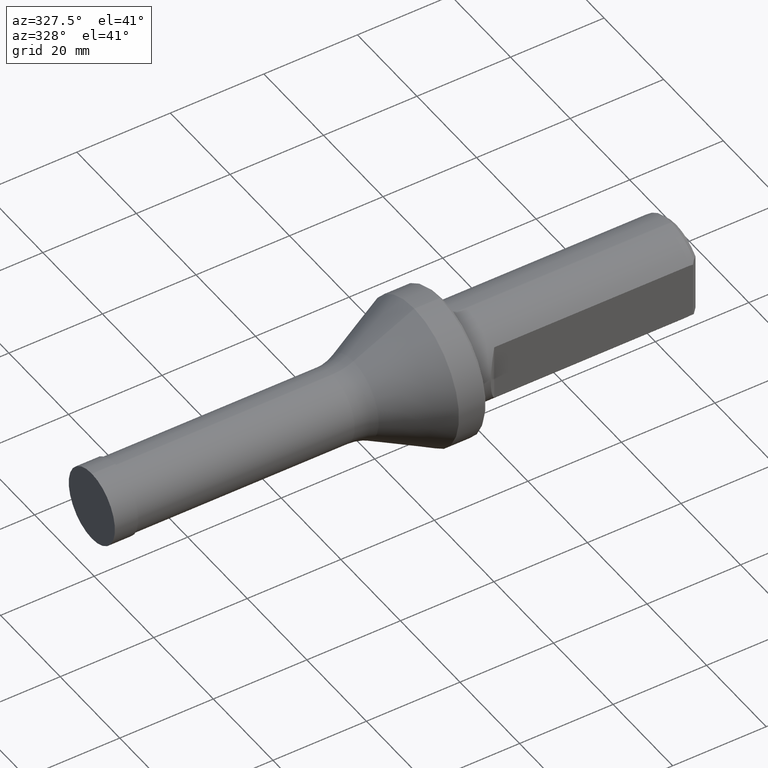
[diagram: clean part render]
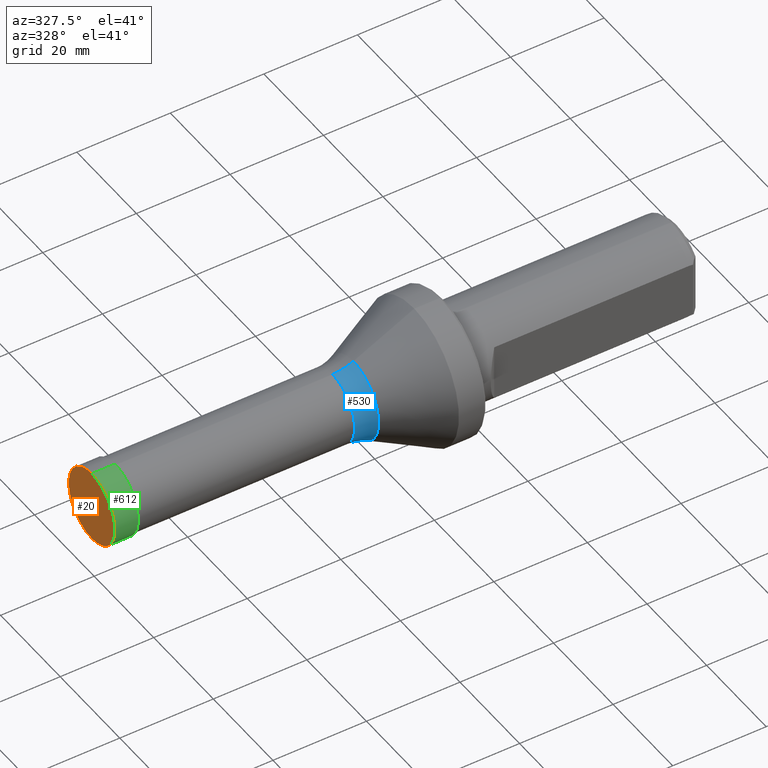
[diagram: same view with three faces highlighted in distinct colors, each labeled with its STEP entity id]
A machine part, auxiliary view with three faces highlighted in distinct colors.
Their STEP definitions:

[orange] entity #20 — the highlighted planar face has unit normal (1, 0, 0).
#20 = ADVANCED_FACE ( 'NONE', ( #826 ), #1227, .F. ) ;
#40 = EDGE_CURVE ( 'NONE', #861, #819, #638, .T. ) ;
#113 = CIRCLE ( 'NONE', #583, 7.750000000000000000 ) ;
#180 = DIRECTION ( 'NONE',  ( 0.0000000000000000000, 0.0000000000000000000, -1.000000000000000000 ) ) ;
#200 = EDGE_LOOP ( 'NONE', ( #685, #458 ) ) ;
#290 = CARTESIAN_POINT ( 'NONE',  ( -0.5000000000000001100, 0.0000000000000000000, 0.0000000000000000000 ) ) ;
#376 = DIRECTION ( 'NONE',  ( 0.0000000000000000000, 0.0000000000000000000, 1.000000000000000000 ) ) ;
#457 = CARTESIAN_POINT ( 'NONE',  ( -0.5000000000000001100, 1.735000000000000100, 0.0000000000000000000 ) ) ;
#458 = ORIENTED_EDGE ( 'NONE', *, *, #40, .T. ) ;
#459 = CARTESIAN_POINT ( 'NONE',  ( -0.5000000000000001100, 0.0000000000000000000, 0.0000000000000000000 ) ) ;
#528 = AXIS2_PLACEMENT_3D ( 'NONE', #457, #648, #180 ) ;
#552 = DIRECTION ( 'NONE',  ( -1.000000000000000000, 0.0000000000000000000, 0.0000000000000000000 ) ) ;
#583 = AXIS2_PLACEMENT_3D ( 'NONE', #459, #552, #1133 ) ;
#638 = CIRCLE ( 'NONE', #787, 7.750000000000000000 ) ;
#648 = DIRECTION ( 'NONE',  ( 1.000000000000000000, 0.0000000000000000000, 0.0000000000000000000 ) ) ;
#685 = ORIENTED_EDGE ( 'NONE', *, *, #937, .T. ) ;
#760 = CARTESIAN_POINT ( 'NONE',  ( -0.5000000000000001100, 9.491012693391987800E-016, -7.750000000000000000 ) ) ;
#787 = AXIS2_PLACEMENT_3D ( 'NONE', #290, #941, #376 ) ;
#819 = VERTEX_POINT ( 'NONE', #1152 ) ;
#826 = FACE_OUTER_BOUND ( 'NONE', #200, .T. ) ;
#861 = VERTEX_POINT ( 'NONE', #760 ) ;
#937 = EDGE_CURVE ( 'NONE', #819, #861, #113, .T. ) ;
#941 = DIRECTION ( 'NONE',  ( -1.000000000000000000, 0.0000000000000000000, 0.0000000000000000000 ) ) ;
#1133 = DIRECTION ( 'NONE',  ( 0.0000000000000000000, 0.0000000000000000000, 1.000000000000000000 ) ) ;
#1152 = CARTESIAN_POINT ( 'NONE',  ( -0.5000000000000001100, 0.0000000000000000000, 7.750000000000000000 ) ) ;
#1227 = PLANE ( 'NONE',  #528 ) ;

[blue] entity #530 — the highlighted toroidal blend (fillet) surface has major radius 17.45 mm and minor (blend) radius 10 mm.
#26 = VERTEX_POINT ( 'NONE', #283 ) ;
#47 = VERTEX_POINT ( 'NONE', #472 ) ;
#69 = CARTESIAN_POINT ( 'NONE',  ( 50.96900000000000100, 0.0000000000000000000, 0.0000000000000000000 ) ) ;
#162 = DIRECTION ( 'NONE',  ( 0.0000000000000000000, 0.0000000000000000000, 1.000000000000000000 ) ) ;
#216 = CIRCLE ( 'NONE', #997, 10.00000000000000700 ) ;
#283 = CARTESIAN_POINT ( 'NONE',  ( 50.96900000000000100, 0.0000000000000000000, 7.450000000000000200 ) ) ;
#292 = ORIENTED_EDGE ( 'NONE', *, *, #646, .T. ) ;
#313 = DIRECTION ( 'NONE',  ( 0.0000000000000000000, -1.224646799147353500E-016, 1.000000000000000000 ) ) ;
#332 = DIRECTION ( 'NONE',  ( 0.0000000000000000000, -1.000000000000000000, 0.0000000000000000000 ) ) ;
#344 = AXIS2_PLACEMENT_3D ( 'NONE', #869, #970, #313 ) ;
#360 = AXIS2_PLACEMENT_3D ( 'NONE', #69, #721, #162 ) ;
#361 = TOROIDAL_SURFACE ( 'NONE', #543, 17.44999999999999900, 10.00000000000000700 ) ;
#398 = CARTESIAN_POINT ( 'NONE',  ( 50.96900000000000100, 9.123618653647781200E-016, -7.450000000000000200 ) ) ;
#418 = CARTESIAN_POINT ( 'NONE',  ( 50.96900000000000100, 0.0000000000000000000, 17.44999999999999900 ) ) ;
#419 = AXIS2_PLACEMENT_3D ( 'NONE', #588, #1161, #492 ) ;
#420 = ORIENTED_EDGE ( 'NONE', *, *, #669, .T. ) ;
#472 = CARTESIAN_POINT ( 'NONE',  ( 55.43554605212926100, 0.0000000000000000000, 8.502935321335346700 ) ) ;
#492 = DIRECTION ( 'NONE',  ( 0.0000000000000000000, 0.0000000000000000000, 1.000000000000000000 ) ) ;
#493 = EDGE_CURVE ( 'NONE', #1136, #26, #1068, .T. ) ;
#530 = ADVANCED_FACE ( 'NONE', ( #889 ), #361, .F. ) ;
#543 = AXIS2_PLACEMENT_3D ( 'NONE', #695, #789, #598 ) ;
#588 = CARTESIAN_POINT ( 'NONE',  ( 55.43554605212926100, 0.0000000000000000000, 0.0000000000000000000 ) ) ;
#598 = DIRECTION ( 'NONE',  ( 0.0000000000000000000, 0.0000000000000000000, 1.000000000000000000 ) ) ;
#602 = EDGE_CURVE ( 'NONE', #26, #47, #216, .T. ) ;
#614 = ORIENTED_EDGE ( 'NONE', *, *, #493, .F. ) ;
#636 = CIRCLE ( 'NONE', #344, 10.00000000000000700 ) ;
#646 = EDGE_CURVE ( 'NONE', #1136, #1180, #636, .T. ) ;
#669 = EDGE_CURVE ( 'NONE', #1180, #47, #951, .T. ) ;
#695 = CARTESIAN_POINT ( 'NONE',  ( 50.96900000000000100, 0.0000000000000000000, 0.0000000000000000000 ) ) ;
#721 = DIRECTION ( 'NONE',  ( -1.000000000000000000, -0.0000000000000000000, -0.0000000000000000000 ) ) ;
#789 = DIRECTION ( 'NONE',  ( -1.000000000000000000, -0.0000000000000000000, -0.0000000000000000000 ) ) ;
#869 = CARTESIAN_POINT ( 'NONE',  ( 50.96900000000000100, 2.137008664512131600E-015, -17.44999999999999900 ) ) ;
#881 = DIRECTION ( 'NONE',  ( 0.0000000000000000000, 0.0000000000000000000, -1.000000000000000000 ) ) ;
#889 = FACE_OUTER_BOUND ( 'NONE', #1110, .T. ) ;
#951 = CIRCLE ( 'NONE', #419, 8.502935321335348500 ) ;
#970 = DIRECTION ( 'NONE',  ( -0.0000000000000000000, 1.000000000000000000, 1.224646799147353200E-016 ) ) ;
#997 = AXIS2_PLACEMENT_3D ( 'NONE', #418, #332, #881 ) ;
#1053 = CARTESIAN_POINT ( 'NONE',  ( 55.43554605212926100, 1.041309252463030300E-015, -8.502935321335346700 ) ) ;
#1068 = CIRCLE ( 'NONE', #360, 7.450000000000000200 ) ;
#1110 = EDGE_LOOP ( 'NONE', ( #614, #292, #420, #1230 ) ) ;
#1136 = VERTEX_POINT ( 'NONE', #398 ) ;
#1161 = DIRECTION ( 'NONE',  ( -1.000000000000000000, -0.0000000000000000000, -0.0000000000000000000 ) ) ;
#1180 = VERTEX_POINT ( 'NONE', #1053 ) ;
#1230 = ORIENTED_EDGE ( 'NONE', *, *, #602, .F. ) ;

[green] entity #612 — the highlighted cylindrical surface (partial cylindrical patch) has radius 7.75 mm, axis along (-1, 0, 0).
#32 = EDGE_CURVE ( 'NONE', #1215, #461, #312, .T. ) ;
#40 = EDGE_CURVE ( 'NONE', #861, #819, #638, .T. ) ;
#64 = CARTESIAN_POINT ( 'NONE',  ( 4.500000000000000000, 0.0000000000000000000, 7.750000000000000000 ) ) ;
#124 = ORIENTED_EDGE ( 'NONE', *, *, #32, .T. ) ;
#140 = VECTOR ( 'NONE', #429, 1000.000000000000000 ) ;
#290 = CARTESIAN_POINT ( 'NONE',  ( -0.5000000000000001100, 0.0000000000000000000, 0.0000000000000000000 ) ) ;
#312 = CIRCLE ( 'NONE', #597, 7.750000000000000000 ) ;
#376 = DIRECTION ( 'NONE',  ( 0.0000000000000000000, 0.0000000000000000000, 1.000000000000000000 ) ) ;
#422 = LINE ( 'NONE', #828, #545 ) ;
#429 = DIRECTION ( 'NONE',  ( -1.000000000000000000, 0.0000000000000000000, 0.0000000000000000000 ) ) ;
#430 = EDGE_CURVE ( 'NONE', #461, #819, #751, .T. ) ;
#461 = VERTEX_POINT ( 'NONE', #811 ) ;
#468 = CARTESIAN_POINT ( 'NONE',  ( 4.500000000000000000, 0.0000000000000000000, 0.0000000000000000000 ) ) ;
#535 = CYLINDRICAL_SURFACE ( 'NONE', #1194, 7.750000000000000000 ) ;
#545 = VECTOR ( 'NONE', #736, 1000.000000000000000 ) ;
#557 = DIRECTION ( 'NONE',  ( 0.0000000000000000000, 0.0000000000000000000, 1.000000000000000000 ) ) ;
#597 = AXIS2_PLACEMENT_3D ( 'NONE', #468, #1138, #557 ) ;
#612 = ADVANCED_FACE ( 'NONE', ( #720 ), #535, .T. ) ;
#638 = CIRCLE ( 'NONE', #787, 7.750000000000000000 ) ;
#655 = ORIENTED_EDGE ( 'NONE', *, *, #1002, .F. ) ;
#720 = FACE_OUTER_BOUND ( 'NONE', #996, .T. ) ;
#736 = DIRECTION ( 'NONE',  ( -1.000000000000000000, 0.0000000000000000000, 0.0000000000000000000 ) ) ;
#751 = LINE ( 'NONE', #64, #140 ) ;
#760 = CARTESIAN_POINT ( 'NONE',  ( -0.5000000000000001100, 9.491012693391987800E-016, -7.750000000000000000 ) ) ;
#787 = AXIS2_PLACEMENT_3D ( 'NONE', #290, #941, #376 ) ;
#795 = ORIENTED_EDGE ( 'NONE', *, *, #40, .F. ) ;
#797 = CARTESIAN_POINT ( 'NONE',  ( 4.500000000000000000, 0.0000000000000000000, 0.0000000000000000000 ) ) ;
#811 = CARTESIAN_POINT ( 'NONE',  ( 4.500000000000000000, 0.0000000000000000000, 7.750000000000000000 ) ) ;
#819 = VERTEX_POINT ( 'NONE', #1152 ) ;
#828 = CARTESIAN_POINT ( 'NONE',  ( 4.500000000000000000, 9.491012693391987800E-016, -7.750000000000000000 ) ) ;
#861 = VERTEX_POINT ( 'NONE', #760 ) ;
#895 = DIRECTION ( 'NONE',  ( 0.0000000000000000000, 0.0000000000000000000, 1.000000000000000000 ) ) ;
#936 = ORIENTED_EDGE ( 'NONE', *, *, #430, .T. ) ;
#941 = DIRECTION ( 'NONE',  ( -1.000000000000000000, 0.0000000000000000000, 0.0000000000000000000 ) ) ;
#985 = DIRECTION ( 'NONE',  ( -1.000000000000000000, 0.0000000000000000000, 0.0000000000000000000 ) ) ;
#996 = EDGE_LOOP ( 'NONE', ( #655, #124, #936, #795 ) ) ;
#1002 = EDGE_CURVE ( 'NONE', #1215, #861, #422, .T. ) ;
#1138 = DIRECTION ( 'NONE',  ( -1.000000000000000000, 0.0000000000000000000, 0.0000000000000000000 ) ) ;
#1152 = CARTESIAN_POINT ( 'NONE',  ( -0.5000000000000001100, 0.0000000000000000000, 7.750000000000000000 ) ) ;
#1158 = CARTESIAN_POINT ( 'NONE',  ( 4.500000000000000000, 9.491012693391987800E-016, -7.750000000000000000 ) ) ;
#1194 = AXIS2_PLACEMENT_3D ( 'NONE', #797, #985, #895 ) ;
#1215 = VERTEX_POINT ( 'NONE', #1158 ) ;